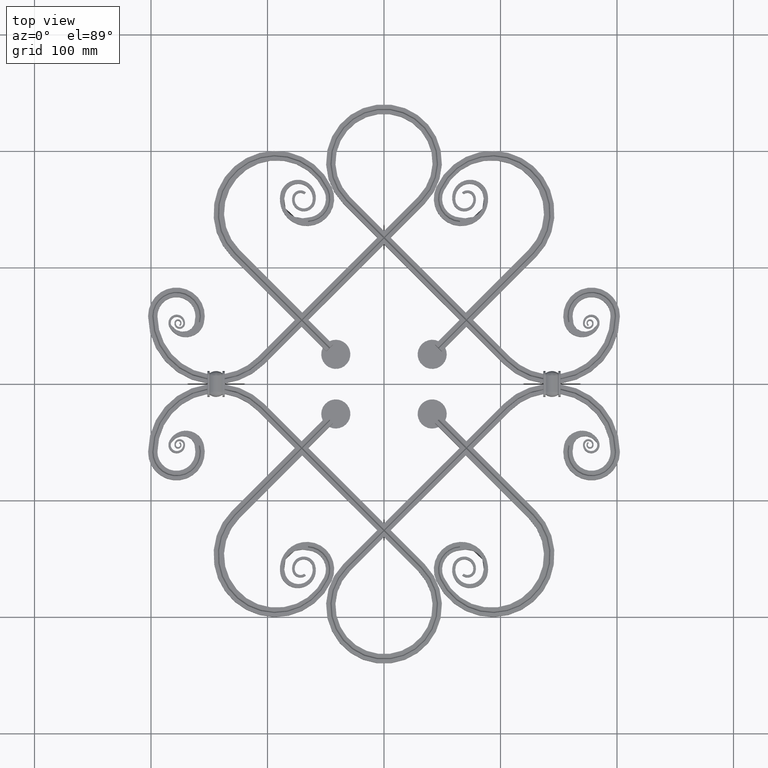
[diagram: clean part render]
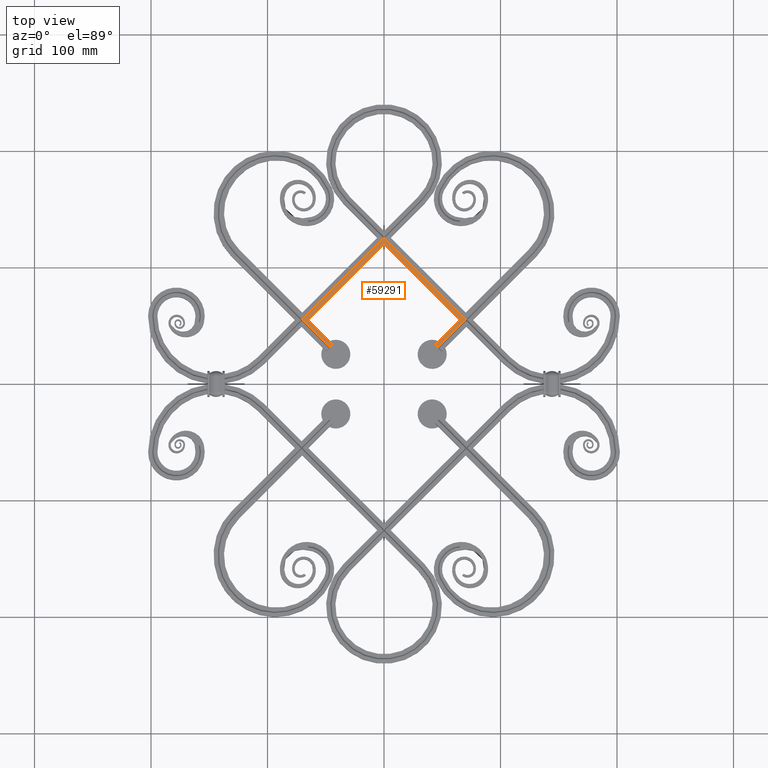
[diagram: same view with one face highlighted and labeled with its STEP entity id]
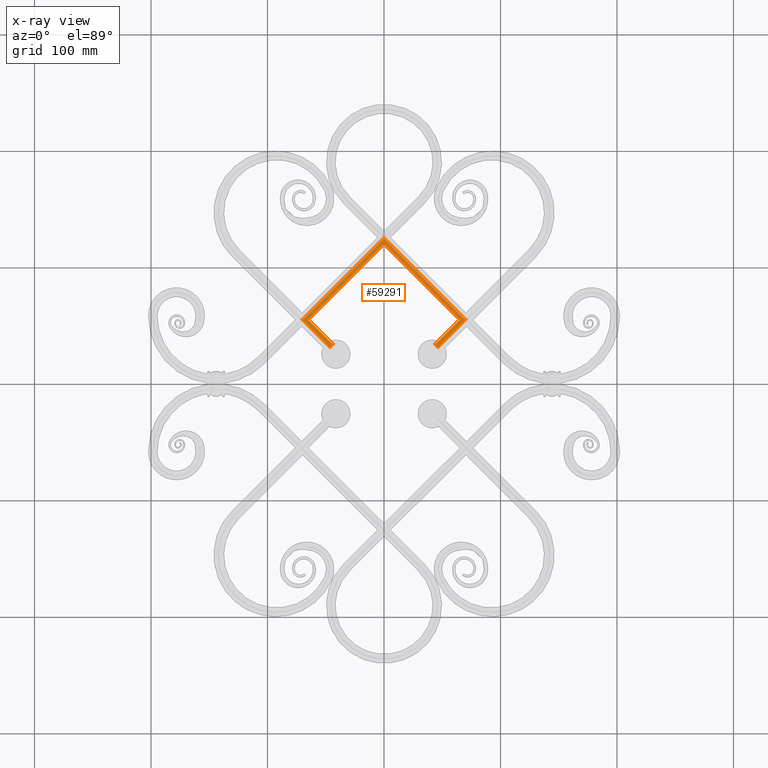
[diagram: x-ray of the same camera — body ghosted, the highlighted face saturated]
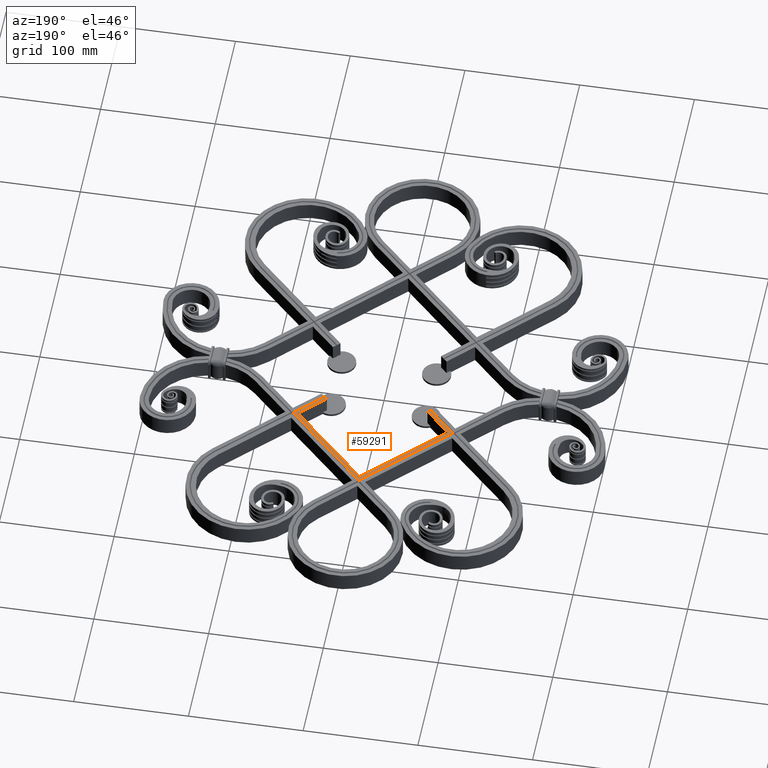
[diagram: same view with one face highlighted and labeled with its STEP entity id]
A machine part, top view. The second image highlights one B-rep face of the part: STEP entity #59291.
The next image is the same camera in x-ray: the body ghosted, the highlighted face saturated — about 0% of this face is hidden behind the body in this view.
A second angle (auxiliary view) of the same face is appended — the face is thin or edge-on in the first view.
In plain terms, the highlighted planar face has unit normal (-0, 0, -1).
Its self-contained STEP definition (entity closure, byte-faithful):
#10 = LINE ( 'NONE', #48245, #35845 ) ;
#793 = CARTESIAN_POINT ( 'NONE',  ( 122.3413885931406355, 2.498969075424437580, 8.000000000000000000 ) ) ;
#1175 = CARTESIAN_POINT ( 'NONE',  ( -4.591928019149013945E-14, 124.8403576685647920, 8.000000000000000000 ) ) ;
#1844 = DIRECTION ( 'NONE',  ( -0.7071067811865479058, 0.7071067811865470176, 0.000000000000000000 ) ) ;
#2611 = VECTOR ( 'NONE', #56159, 999.9999999999998863 ) ;
#2693 = DIRECTION ( 'NONE',  ( 0.7071067811865474617, 0.7071067811865476838, 0.000000000000000000 ) ) ;
#2992 = DIRECTION ( 'NONE',  ( -1.000000000000000000, 0.000000000000000000, 0.000000000000000000 ) ) ;
#3134 = LINE ( 'NONE', #793, #43959 ) ;
#5903 = VECTOR ( 'NONE', #20450, 999.9999999999998863 ) ;
#7167 = CARTESIAN_POINT ( 'NONE',  ( 65.05382386916254234, 54.94617613083778451, 8.000000000000000000 ) ) ;
#8357 = CARTESIAN_POINT ( 'NONE',  ( -178.1787289656059841, 58.33630944788989581, 8.000000000000000000 ) ) ;
#8943 = EDGE_CURVE ( 'NONE', #41841, #32936, #10, .T. ) ;
#9060 = EDGE_LOOP ( 'NONE', ( #55016, #50998, #11938, #44063, #11036, #49018, #25967, #38047, #9444, #36139 ) ) ;
#9302 = CARTESIAN_POINT ( 'NONE',  ( -65.05382386916255655, 54.94617613083777030, 8.000000000000000000 ) ) ;
#9444 = ORIENTED_EDGE ( 'NONE', *, *, #49302, .F. ) ;
#10106 = LINE ( 'NONE', #20867, #57343 ) ;
#10875 = VECTOR ( 'NONE', #30097, 1000.000000000000227 ) ;
#11036 = ORIENTED_EDGE ( 'NONE', *, *, #30914, .T. ) ;
#11938 = ORIENTED_EDGE ( 'NONE', *, *, #26698, .T. ) ;
#12911 = CARTESIAN_POINT ( 'NONE',  ( -69.89418153772717801, 54.94617613083773477, 7.999999999999996447 ) ) ;
#13558 = DIRECTION ( 'NONE',  ( 0.7071067811865483499, 0.7071067811865467956, 0.000000000000000000 ) ) ;
#14997 = VERTEX_POINT ( 'NONE', #57140 ) ;
#15848 = VERTEX_POINT ( 'NONE', #28991 ) ;
#15925 = EDGE_CURVE ( 'NONE', #58943, #57208, #56223, .T. ) ;
#17537 = EDGE_CURVE ( 'NONE', #25823, #14997, #30425, .T. ) ;
#18163 = EDGE_CURVE ( 'NONE', #15848, #55598, #3134, .T. ) ;
#20313 = VECTOR ( 'NONE', #37972, 1000.000000000000000 ) ;
#20450 = DIRECTION ( 'NONE',  ( -0.7071067811865472397, -0.7071067811865479058, 0.000000000000000000 ) ) ;
#20641 = CARTESIAN_POINT ( 'NONE',  ( 125.7315219101926260, 110.7835165033032467, 8.000000000000000000 ) ) ;
#20867 = CARTESIAN_POINT ( 'NONE',  ( 65.05382386916254234, 54.94617613083778451, 8.000000000000000000 ) ) ;
#22568 = VECTOR ( 'NONE', #26342, 1000.000000000000000 ) ;
#24438 = DIRECTION ( 'NONE',  ( 0.7071067811865477948, 0.7071067811865473507, 0.000000000000000000 ) ) ;
#24887 = EDGE_CURVE ( 'NONE', #58513, #28586, #43088, .T. ) ;
#25795 = AXIS2_PLACEMENT_3D ( 'NONE', #8357, #44235, #2992 ) ;
#25823 = VERTEX_POINT ( 'NONE', #12911 ) ;
#25967 = ORIENTED_EDGE ( 'NONE', *, *, #38176, .F. ) ;
#26342 = DIRECTION ( 'NONE',  ( -0.7071067811865476838, 0.7071067811865474617, -0.000000000000000000 ) ) ;
#26698 = EDGE_CURVE ( 'NONE', #14997, #58943, #47940, .T. ) ;
#27176 = VECTOR ( 'NONE', #24438, 1000.000000000000000 ) ;
#27934 = VECTOR ( 'NONE', #13558, 1000.000000000000000 ) ;
#28000 = CARTESIAN_POINT ( 'NONE',  ( -122.3413885931406355, 2.498969075424406494, 8.000000000000000000 ) ) ;
#28556 = LINE ( 'NONE', #28000, #27934 ) ;
#28586 = VERTEX_POINT ( 'NONE', #38488 ) ;
#28991 = CARTESIAN_POINT ( 'NONE',  ( 69.89418153772716380, 54.94617613083775609, 7.999999999999996447 ) ) ;
#30097 = DIRECTION ( 'NONE',  ( -0.7071067811865490160, 0.7071067811865460184, 0.000000000000000000 ) ) ;
#30425 = LINE ( 'NONE', #52164, #20313 ) ;
#30914 = EDGE_CURVE ( 'NONE', #57208, #28586, #48414, .T. ) ;
#31559 = CARTESIAN_POINT ( 'NONE',  ( -65.05382386916255655, 54.94617613083777030, 8.000000000000000000 ) ) ;
#32936 = VERTEX_POINT ( 'NONE', #52011 ) ;
#33898 = CARTESIAN_POINT ( 'NONE',  ( -49.49747468305851328, 28.07611844574897475, 8.000000000000000000 ) ) ;
#35845 = VECTOR ( 'NONE', #1844, 1000.000000000000114 ) ;
#36139 = ORIENTED_EDGE ( 'NONE', *, *, #18163, .T. ) ;
#37523 = CARTESIAN_POINT ( 'NONE',  ( -4.120750835143157825E-14, 120.0000000000001137, 8.000000000000000000 ) ) ;
#37972 = DIRECTION ( 'NONE',  ( 0.7071067811865474617, -0.7071067811865475727, 0.000000000000000000 ) ) ;
#38047 = ORIENTED_EDGE ( 'NONE', *, *, #8943, .F. ) ;
#38176 = EDGE_CURVE ( 'NONE', #32936, #58513, #10106, .T. ) ;
#38384 = CARTESIAN_POINT ( 'NONE',  ( 1.040834085586084257E-14, 120.0000000000001137, 8.000000000000000000 ) ) ;
#38488 = CARTESIAN_POINT ( 'NONE',  ( -4.120750835143157825E-14, 120.0000000000001137, 8.000000000000000000 ) ) ;
#40047 = FACE_OUTER_BOUND ( 'NONE', #9060, .T. ) ;
#40311 = EDGE_CURVE ( 'NONE', #25823, #55598, #28556, .T. ) ;
#40352 = LINE ( 'NONE', #20641, #5903 ) ;
#41226 = CARTESIAN_POINT ( 'NONE',  ( 46.26079926784846208, 31.31279386095904016, 7.999999999999994671 ) ) ;
#41841 = VERTEX_POINT ( 'NONE', #41226 ) ;
#43088 = LINE ( 'NONE', #37523, #10875 ) ;
#43959 = VECTOR ( 'NONE', #50419, 1000.000000000000000 ) ;
#44063 = ORIENTED_EDGE ( 'NONE', *, *, #15925, .T. ) ;
#44235 = DIRECTION ( 'NONE',  ( -0.000000000000000000, 0.000000000000000000, -1.000000000000000000 ) ) ;
#47310 = CARTESIAN_POINT ( 'NONE',  ( -43.84062043356613003, 33.73297269524135089, 8.000000000000000000 ) ) ;
#47940 = LINE ( 'NONE', #33898, #27176 ) ;
#48245 = CARTESIAN_POINT ( 'NONE',  ( 49.49747468305850617, 28.07611844574898541, 8.000000000000000000 ) ) ;
#48414 = LINE ( 'NONE', #38384, #2611 ) ;
#49018 = ORIENTED_EDGE ( 'NONE', *, *, #24887, .F. ) ;
#49302 = EDGE_CURVE ( 'NONE', #15848, #41841, #40352, .T. ) ;
#50419 = DIRECTION ( 'NONE',  ( -0.7071067811865485719, 0.7071067811865465735, 0.000000000000000000 ) ) ;
#50998 = ORIENTED_EDGE ( 'NONE', *, *, #17537, .T. ) ;
#52011 = CARTESIAN_POINT ( 'NONE',  ( 43.84062043356612293, 33.73297269524136510, 8.000000000000000000 ) ) ;
#52164 = CARTESIAN_POINT ( 'NONE',  ( -125.7315219101926544, 110.7835165033032183, 8.000000000000000000 ) ) ;
#55016 = ORIENTED_EDGE ( 'NONE', *, *, #40311, .F. ) ;
#55598 = VERTEX_POINT ( 'NONE', #1175 ) ;
#56159 = DIRECTION ( 'NONE',  ( 0.7071067811865489050, 0.7071067811865462405, -0.000000000000000000 ) ) ;
#56223 = LINE ( 'NONE', #31559, #22568 ) ;
#57140 = CARTESIAN_POINT ( 'NONE',  ( -46.26079926784846919, 31.31279386095902595, 7.999999999999994671 ) ) ;
#57208 = VERTEX_POINT ( 'NONE', #9302 ) ;
#57343 = VECTOR ( 'NONE', #2693, 1000.000000000000000 ) ;
#58513 = VERTEX_POINT ( 'NONE', #7167 ) ;
#58578 = PLANE ( 'NONE',  #25795 ) ;
#58943 = VERTEX_POINT ( 'NONE', #47310 ) ;
#59291 = ADVANCED_FACE ( 'NONE', ( #40047 ), #58578, .F. ) ;